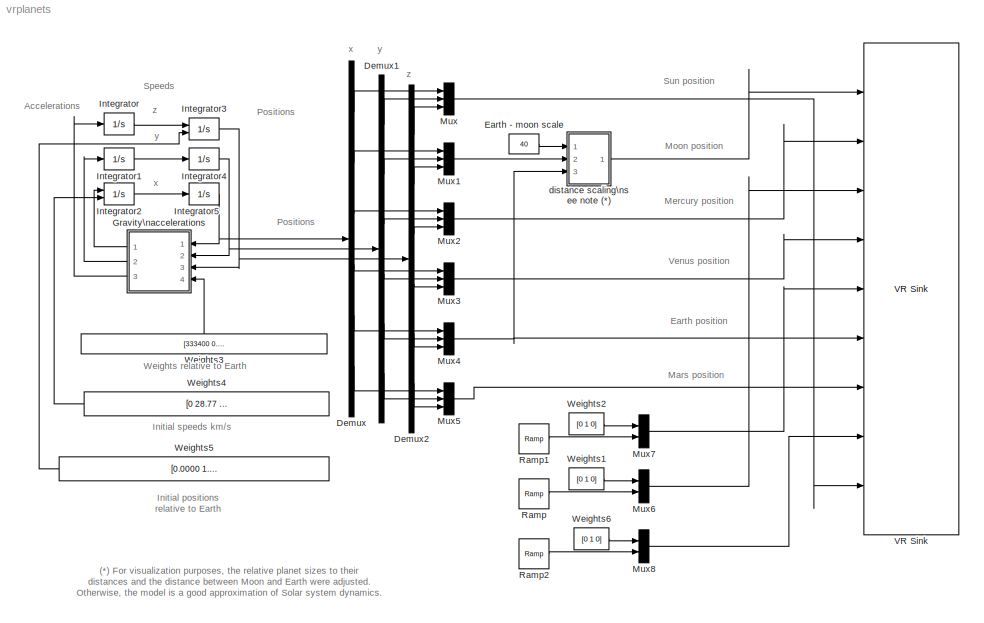
MODEL vrplanets
KIND model
BLOCK [Demux] Demux
  Outputs = 6
  Ports = [1, 6]
BLOCK [Demux] Demux1
  Outputs = 6
  Ports = [1, 6]
BLOCK [Demux] Demux2
  Outputs = 6
  Ports = [1, 6]
BLOCK [Constant] Earth - moon scale
  Value = 40
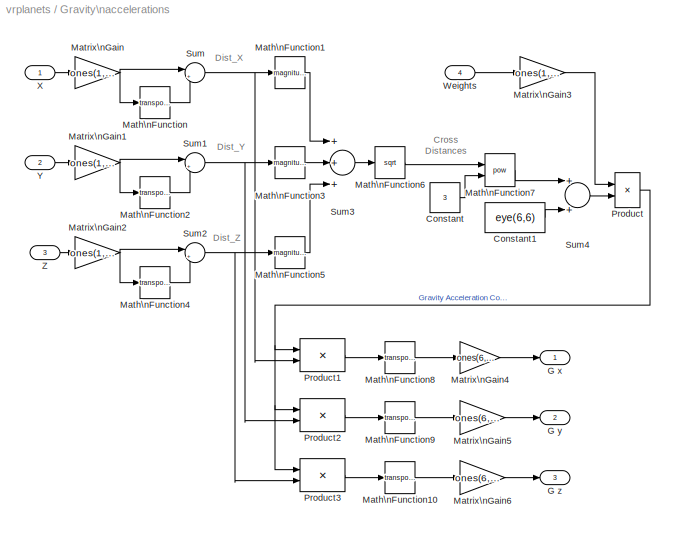
BLOCK [SubSystem] Gravity\naccelerations
  EnableExecutionContextPropagation = on
  MinAlgLoopOccurrences = off
  Ports = [4, 3]
  TreatAsAtomicUnit = off
BLOCK [Constant] Gravity\naccelerations/Constant
  Value = 3
BLOCK [Constant] Gravity\naccelerations/Constant1
  Value = eye(6,6)
BLOCK [Outport] Gravity\naccelerations/G x
  IconDisplay = Port number
BLOCK [Outport] Gravity\naccelerations/G y
  IconDisplay = Port number
  Port = 2
BLOCK [Outport] Gravity\naccelerations/G z
  IconDisplay = Port number
  Port = 3
BLOCK [Math] Gravity\naccelerations/Math\nFunction
  Operator = transpose
  Ports = [1, 1]
BLOCK [Math] Gravity\naccelerations/Math\nFunction1
  Operator = magnitude^2
  Ports = [1, 1]
BLOCK [Math] Gravity\naccelerations/Math\nFunction10
  Operator = transpose
  Ports = [1, 1]
BLOCK [Math] Gravity\naccelerations/Math\nFunction2
  Operator = transpose
  Ports = [1, 1]
BLOCK [Math] Gravity\naccelerations/Math\nFunction3
  Operator = magnitude^2
  Ports = [1, 1]
BLOCK [Math] Gravity\naccelerations/Math\nFunction4
  Operator = transpose
  Ports = [1, 1]
BLOCK [Math] Gravity\naccelerations/Math\nFunction5
  Operator = magnitude^2
  Ports = [1, 1]
BLOCK [Math] Gravity\naccelerations/Math\nFunction6
  Operator = sqrt
  Ports = [1, 1]
BLOCK [Math] Gravity\naccelerations/Math\nFunction7
  Operator = pow
  Ports = [2, 1]
BLOCK [Math] Gravity\naccelerations/Math\nFunction8
  Operator = transpose
  Ports = [1, 1]
BLOCK [Math] Gravity\naccelerations/Math\nFunction9
  Operator = transpose
  Ports = [1, 1]
BLOCK [Gain] Gravity\naccelerations/Matrix\nGain
  Gain = ones(1,6)
  Multiplication = Matrix(u*K)
BLOCK [Gain] Gravity\naccelerations/Matrix\nGain1
  Gain = ones(1,6)
  Multiplication = Matrix(u*K)
BLOCK [Gain] Gravity\naccelerations/Matrix\nGain2
  Gain = ones(1,6)
  Multiplication = Matrix(u*K)
BLOCK [Gain] Gravity\naccelerations/Matrix\nGain3
  Gain = ones(1,6)
  Multiplication = Matrix(u*K)
BLOCK [Gain] Gravity\naccelerations/Matrix\nGain4
  Gain = ones(6,1)
  Multiplication = Matrix(u*K)
BLOCK [Gain] Gravity\naccelerations/Matrix\nGain5
  Gain = ones(6,1)
  Multiplication = Matrix(u*K)
BLOCK [Gain] Gravity\naccelerations/Matrix\nGain6
  Gain = ones(6,1)
  Multiplication = Matrix(u*K)
BLOCK [Product] Gravity\naccelerations/Product
  Inputs = */
  Ports = [2, 1]
  RndMeth = Floor
BLOCK [Product] Gravity\naccelerations/Product1
  Ports = [2, 1]
  RndMeth = Floor
BLOCK [Product] Gravity\naccelerations/Product2
  Ports = [2, 1]
  RndMeth = Floor
BLOCK [Product] Gravity\naccelerations/Product3
  Ports = [2, 1]
  RndMeth = Floor
BLOCK [Sum] Gravity\naccelerations/Sum
  IconShape = round
  Inputs = |+-
  Ports = [2, 1]
BLOCK [Sum] Gravity\naccelerations/Sum1
  IconShape = round
  Inputs = |+-
  Ports = [2, 1]
BLOCK [Sum] Gravity\naccelerations/Sum2
  IconShape = round
  Inputs = |+-
  Ports = [2, 1]
BLOCK [Sum] Gravity\naccelerations/Sum3
  Inputs = +++
  Ports = [3, 1]
BLOCK [Sum] Gravity\naccelerations/Sum4
  Ports = [2, 1]
BLOCK [Inport] Gravity\naccelerations/Weights
  IconDisplay = Port number
  LatchInput = off
  Port = 4
BLOCK [Inport] Gravity\naccelerations/X
  IconDisplay = Port number
  LatchInput = off
BLOCK [Inport] Gravity\naccelerations/Y
  IconDisplay = Port number
  LatchInput = off
  Port = 2
BLOCK [Inport] Gravity\naccelerations/Z
  IconDisplay = Port number
  LatchInput = off
  Port = 3
BLOCK [Integrator] Integrator
  LowerSaturationLimit = -Inf
  Ports = [1, 1]
  UpperSaturationLimit = Inf
BLOCK [Integrator] Integrator1
  LowerSaturationLimit = -Inf
  Ports = [1, 1]
  UpperSaturationLimit = Inf
BLOCK [Integrator] Integrator2
  InitialCondition = [0  0  47.87  35.02  29.79  24.13] * 3.54
  InitialConditionSource = external
  LowerSaturationLimit = -Inf
  Ports = [2, 1]
  UpperSaturationLimit = Inf
BLOCK [Integrator] Integrator3
  InitialCondition = [0.0000  1.0200  0.3871  0.7233  1.0000  1.5237] * 30
  InitialConditionSource = external
  LowerSaturationLimit = -Inf
  Ports = [2, 1]
  UpperSaturationLimit = Inf
BLOCK [Integrator] Integrator4
  LowerSaturationLimit = -Inf
  Ports = [1, 1]
  UpperSaturationLimit = Inf
BLOCK [Integrator] Integrator5
  LowerSaturationLimit = -Inf
  Ports = [1, 1]
  UpperSaturationLimit = Inf
BLOCK [Mux] Mux
  DisplayOption = bar
  Inputs = 3
  Ports = [3, 1]
BLOCK [Mux] Mux1
  DisplayOption = bar
  Inputs = 3
  Ports = [3, 1]
BLOCK [Mux] Mux2
  DisplayOption = bar
  Inputs = 3
  Ports = [3, 1]
BLOCK [Mux] Mux3
  DisplayOption = bar
  Inputs = 3
  Ports = [3, 1]
BLOCK [Mux] Mux4
  DisplayOption = bar
  Inputs = 3
  Ports = [3, 1]
BLOCK [Mux] Mux5
  DisplayOption = bar
  Inputs = 3
  Ports = [3, 1]
BLOCK [Mux] Mux6
  DisplayOption = bar
  Inputs = 2
  Ports = [2, 1]
BLOCK [Mux] Mux7
  DisplayOption = bar
  Inputs = 2
  Ports = [2, 1]
BLOCK [Mux] Mux8
  DisplayOption = bar
  Inputs = 2
  Ports = [2, 1]
BLOCK [Reference] Ramp  REF=simulink/Sources/Ramp
  Ports = [0, 1]
  ShowPortLabels = on
  SourceBlock = simulink/Sources/Ramp
  SourceType = Ramp
  VectorParams1D = on
  X0 = 0
  slope = 11
  start = 0
BLOCK [Reference] Ramp1  REF=simulink/Sources/Ramp
  Ports = [0, 1]
  ShowPortLabels = on
  SourceBlock = simulink/Sources/Ramp
  SourceType = Ramp
  VectorParams1D = on
  X0 = 0
  slope = 37
  start = 0
BLOCK [Reference] Ramp2  REF=simulink/Sources/Ramp
  Ports = [0, 1]
  ShowPortLabels = on
  SourceBlock = simulink/Sources/Ramp
  SourceType = Ramp
  VectorParams1D = on
  X0 = 0
  slope = 3
  start = 0
BLOCK [Reference] VR Sink  REF=vrlib/VR Sink
  AutoView = on
  FieldsWritten = Moon.translation.3.1.double#Mercury.translation.3.1.double#Venus.rotation.4.1.double#Venus.translation.3.1.double#Earth.rotation.4.1.double#Earth.translation.3.1.double#Mars.translation.3.1.double#Sun.rotation.4.1.double#Sun.translation.3.1.double
  Ports = [9]
  RemoteChange = off
  RemoteView = off
  SampleTime = 0.005
  SourceBlock = vrlib/VR Sink
  SourceType = Virtual Reality Sink
  ViewEnable = on
  WorldFileName = vrplanets.wrl
BLOCK [Constant] Weights1
  Value = [0 1 0]
BLOCK [Constant] Weights2
  Value = [0 1 0]
BLOCK [Constant] Weights3
  Value = [333400  0.0123  0.053  0.815  1.0000  0.107 ]
BLOCK [Constant] Weights4
  Value = [0  28.77  47.87  35.02  29.79  24.13] * 3.539
BLOCK [Constant] Weights5
  Value = [0.0000  1.0026  0.3871  0.7233  1.0000  1.5237] * 30
BLOCK [Constant] Weights6
  Value = [0 1 0]
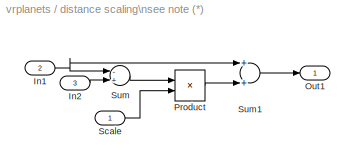
BLOCK [SubSystem] distance scaling\nsee note (*)
  EnableExecutionContextPropagation = on
  MinAlgLoopOccurrences = off
  Ports = [3, 1]
  TreatAsAtomicUnit = off
BLOCK [Inport] distance scaling\nsee note (*)/In1
  IconDisplay = Port number
  LatchInput = off
  Port = 2
BLOCK [Inport] distance scaling\nsee note (*)/In2
  IconDisplay = Port number
  LatchInput = off
  Port = 3
BLOCK [Outport] distance scaling\nsee note (*)/Out1
  IconDisplay = Port number
BLOCK [Product] distance scaling\nsee note (*)/Product
  Ports = [2, 1]
  RndMeth = Floor
BLOCK [Inport] distance scaling\nsee note (*)/Scale
  IconDisplay = Port number
  LatchInput = off
BLOCK [Sum] distance scaling\nsee note (*)/Sum
  Inputs = -+
  Ports = [2, 1]
BLOCK [Sum] distance scaling\nsee note (*)/Sum1
  Ports = [2, 1]
ANNOTATION (root): (*) For visualization purposes, the relative planet sizes to their\ndistances and the distance between Moon and Earth were adjusted.\nOtherwise, the model is a good approximation of Solar system dynamics.
ANNOTATION (root): Accelerations
ANNOTATION (root): Earth position
ANNOTATION (root): Initial positions\nrelative to Earth
ANNOTATION (root): Initial speeds km/s
ANNOTATION (root): Mars position
ANNOTATION (root): Mercury position
ANNOTATION (root): Moon position
ANNOTATION (root): Positions
ANNOTATION (root): Speeds
ANNOTATION (root): Sun position
ANNOTATION (root): Venus position
ANNOTATION (root): Weights relative to Earth
ANNOTATION (root): x
ANNOTATION (root): y
ANNOTATION (root): z
ANNOTATION Gravity\naccelerations: Cross\nDistances
ANNOTATION Gravity\naccelerations: Dist_X
ANNOTATION Gravity\naccelerations: Dist_Y
ANNOTATION Gravity\naccelerations: Dist_Z
LINE Demux1:1 -> Mux:2
LINE Demux1:2 -> Mux1:2
LINE Demux1:3 -> Mux2:2
LINE Demux1:4 -> Mux3:2
LINE Demux1:5 -> Mux4:2
LINE Demux1:6 -> Mux5:2
LINE Demux2:1 -> Mux:3
LINE Demux2:2 -> Mux1:3
LINE Demux2:3 -> Mux2:3
LINE Demux2:4 -> Mux3:3
LINE Demux2:5 -> Mux4:3
LINE Demux2:6 -> Mux5:3
LINE Demux:1 -> Mux:1
LINE Demux:2 -> Mux1:1
LINE Demux:3 -> Mux2:1
LINE Demux:4 -> Mux3:1
LINE Demux:5 -> Mux4:1
LINE Demux:6 -> Mux5:1
LINE Earth - moon scale:1 -> distance scaling\nsee note (*):1
LINE Gravity\naccelerations/Constant1:1 -> Gravity\naccelerations/Sum4:2
LINE Gravity\naccelerations/Constant:1 -> Gravity\naccelerations/Math\nFunction7:2
LINE Gravity\naccelerations/Math\nFunction10:1 -> Gravity\naccelerations/Matrix\nGain6:1
LINE Gravity\naccelerations/Math\nFunction1:1 -> Gravity\naccelerations/Sum3:1
LINE Gravity\naccelerations/Math\nFunction2:1 -> Gravity\naccelerations/Sum1:2
LINE Gravity\naccelerations/Math\nFunction3:1 -> Gravity\naccelerations/Sum3:2
LINE Gravity\naccelerations/Math\nFunction4:1 -> Gravity\naccelerations/Sum2:2
LINE Gravity\naccelerations/Math\nFunction5:1 -> Gravity\naccelerations/Sum3:3
LINE Gravity\naccelerations/Math\nFunction6:1 -> Gravity\naccelerations/Math\nFunction7:1
LINE Gravity\naccelerations/Math\nFunction7:1 -> Gravity\naccelerations/Sum4:1
LINE Gravity\naccelerations/Math\nFunction8:1 -> Gravity\naccelerations/Matrix\nGain4:1
LINE Gravity\naccelerations/Math\nFunction9:1 -> Gravity\naccelerations/Matrix\nGain5:1
LINE Gravity\naccelerations/Math\nFunction:1 -> Gravity\naccelerations/Sum:2
NET Gravity\naccelerations/Matrix\nGain1:1 -> Gravity\naccelerations/Math\nFunction2:1, Gravity\naccelerations/Sum1:1
NET Gravity\naccelerations/Matrix\nGain2:1 -> Gravity\naccelerations/Math\nFunction4:1, Gravity\naccelerations/Sum2:1
LINE Gravity\naccelerations/Matrix\nGain3:1 -> Gravity\naccelerations/Product:1
LINE Gravity\naccelerations/Matrix\nGain4:1 -> Gravity\naccelerations/G x:1
LINE Gravity\naccelerations/Matrix\nGain5:1 -> Gravity\naccelerations/G y:1
LINE Gravity\naccelerations/Matrix\nGain6:1 -> Gravity\naccelerations/G z:1
NET Gravity\naccelerations/Matrix\nGain:1 -> Gravity\naccelerations/Math\nFunction:1, Gravity\naccelerations/Sum:1
LINE Gravity\naccelerations/Product1:1 -> Gravity\naccelerations/Math\nFunction8:1
LINE Gravity\naccelerations/Product2:1 -> Gravity\naccelerations/Math\nFunction9:1
LINE Gravity\naccelerations/Product3:1 -> Gravity\naccelerations/Math\nFunction10:1
NET Gravity\naccelerations/Product:1 -> Gravity\naccelerations/Product1:1, Gravity\naccelerations/Product2:1, Gravity\naccelerations/Product3:1
NET Gravity\naccelerations/Sum1:1 -> Gravity\naccelerations/Math\nFunction3:1, Gravity\naccelerations/Product2:2
NET Gravity\naccelerations/Sum2:1 -> Gravity\naccelerations/Math\nFunction5:1, Gravity\naccelerations/Product3:2
LINE Gravity\naccelerations/Sum3:1 -> Gravity\naccelerations/Math\nFunction6:1
LINE Gravity\naccelerations/Sum4:1 -> Gravity\naccelerations/Product:2
NET Gravity\naccelerations/Sum:1 -> Gravity\naccelerations/Math\nFunction1:1, Gravity\naccelerations/Product1:2
LINE Gravity\naccelerations/Weights:1 -> Gravity\naccelerations/Matrix\nGain3:1
LINE Gravity\naccelerations/X:1 -> Gravity\naccelerations/Matrix\nGain:1
LINE Gravity\naccelerations/Y:1 -> Gravity\naccelerations/Matrix\nGain1:1
LINE Gravity\naccelerations/Z:1 -> Gravity\naccelerations/Matrix\nGain2:1
LINE Gravity\naccelerations:1 -> Integrator2:1
LINE Gravity\naccelerations:2 -> Integrator1:1
LINE Gravity\naccelerations:3 -> Integrator:1
LINE Integrator1:1 -> Integrator4:1
LINE Integrator2:1 -> Integrator5:1
NET Integrator3:1 -> Demux2:1, Gravity\naccelerations:3
NET Integrator4:1 -> Demux1:1, Gravity\naccelerations:2
NET Integrator5:1 -> Demux:1, Gravity\naccelerations:1
LINE Integrator:1 -> Integrator3:1
LINE Mux1:1 -> distance scaling\nsee note (*):2
LINE Mux2:1 -> VR Sink:2
LINE Mux3:1 -> VR Sink:4
NET Mux4:1 -> VR Sink:6, distance scaling\nsee note (*):3
LINE Mux5:1 -> VR Sink:7
LINE Mux6:1 -> VR Sink:3
LINE Mux7:1 -> VR Sink:5
LINE Mux8:1 -> VR Sink:8
LINE Mux:1 -> VR Sink:9
LINE Ramp1:1 -> Mux7:2
LINE Ramp2:1 -> Mux8:2
LINE Ramp:1 -> Mux6:2
LINE Weights1:1 -> Mux6:1
LINE Weights2:1 -> Mux7:1
LINE Weights3:1 -> Gravity\naccelerations:4
LINE Weights4:1 -> Integrator2:2
LINE Weights5:1 -> Integrator3:2
LINE Weights6:1 -> Mux8:1
NET distance scaling\nsee note (*)/In1:1 -> distance scaling\nsee note (*)/Sum1:1, distance scaling\nsee note (*)/Sum:1
LINE distance scaling\nsee note (*)/In2:1 -> distance scaling\nsee note (*)/Sum:2
LINE distance scaling\nsee note (*)/Product:1 -> distance scaling\nsee note (*)/Sum1:2
LINE distance scaling\nsee note (*)/Scale:1 -> distance scaling\nsee note (*)/Product:2
LINE distance scaling\nsee note (*)/Sum1:1 -> distance scaling\nsee note (*)/Out1:1
LINE distance scaling\nsee note (*)/Sum:1 -> distance scaling\nsee note (*)/Product:1
LINE distance scaling\nsee note (*):1 -> VR Sink:1
note: NET lines group one-source signal fan-out (src -> all destinations, sorted); 1:1 wires keep LINE
